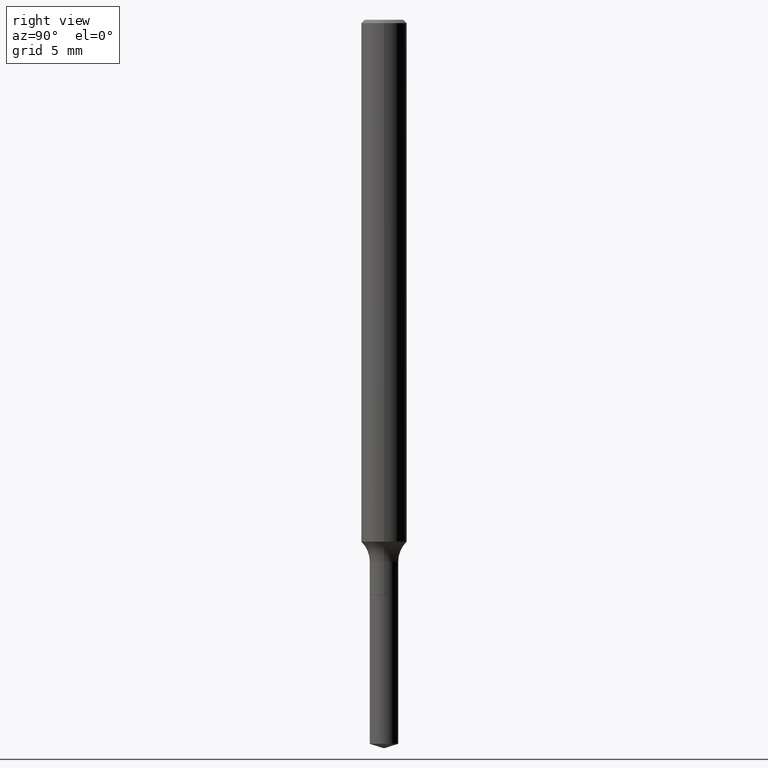
[diagram: clean part render]
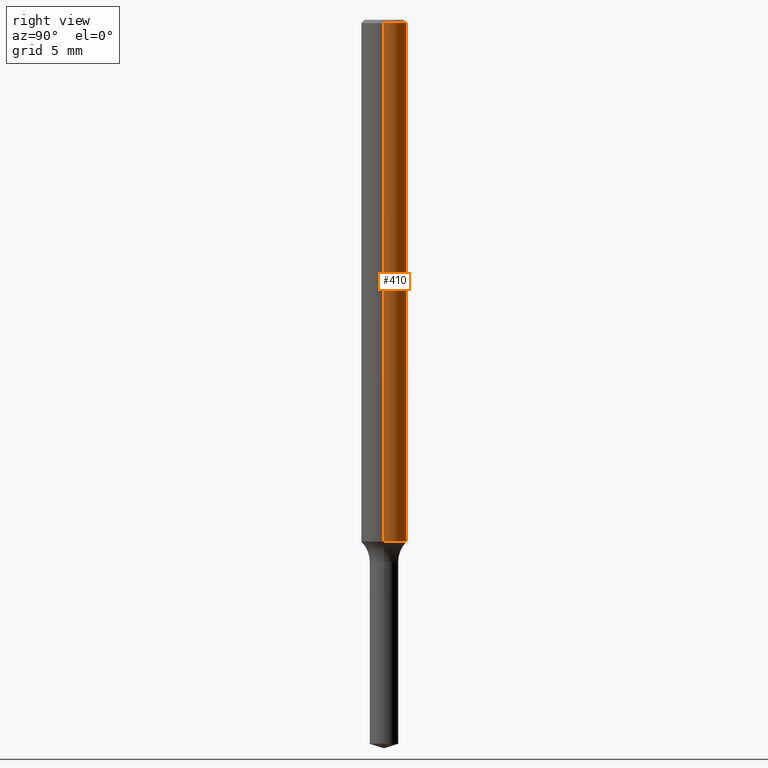
[diagram: same view with one face highlighted and labeled with its STEP entity id]
A machine part, right view. The second image highlights one B-rep face of the part: STEP entity #410.
In plain terms, the highlighted cylindrical surface (edge-blend (fillet) strip) has radius 1.5875 mm, axis along (-0, 0, 1).
Its self-contained STEP definition (entity closure, byte-faithful):
#14 = ORIENTED_EDGE ( 'NONE', *, *, #454, .F. ) ;
#19 = DIRECTION ( 'NONE',  ( -2.445468806185136597E-29, 3.491481338843145583E-15, 1.000000000000000000 ) ) ;
#40 = VERTEX_POINT ( 'NONE', #209 ) ;
#50 = DIRECTION ( 'NONE',  ( -2.445468806185136877E-29, 3.491481338843145188E-15, 1.000000000000000000 ) ) ;
#58 = CARTESIAN_POINT ( 'NONE',  ( 0.06250000000000020817, -5.438485952664117862E-15, -1.432644284722451422 ) ) ;
#68 = VECTOR ( 'NONE', #84, 39.37007874015748143 ) ;
#84 = DIRECTION ( 'NONE',  ( -2.445468806185136877E-29, 3.491481338843145188E-15, 1.000000000000000000 ) ) ;
#89 = AXIS2_PLACEMENT_3D ( 'NONE', #353, #19, #163 ) ;
#99 = CYLINDRICAL_SURFACE ( 'NONE', #89, 0.06250000000000009714 ) ;
#108 = AXIS2_PLACEMENT_3D ( 'NONE', #397, #317, #205 ) ;
#117 = CARTESIAN_POINT ( 'NONE',  ( 0.06250000000000009714, -4.364351673553923597E-16, 3.047610484872464775E-30 ) ) ;
#131 = AXIS2_PLACEMENT_3D ( 'NONE', #179, #491, #295 ) ;
#135 = CARTESIAN_POINT ( 'NONE',  ( -0.06250000000000020817, -4.557961575458662787E-15, -1.432644284722451422 ) ) ;
#158 = LINE ( 'NONE', #117, #456 ) ;
#162 = ORIENTED_EDGE ( 'NONE', *, *, #224, .F. ) ;
#163 = DIRECTION ( 'NONE',  ( 1.000000000000000000, -6.982962677686266711E-15, 4.876176775795935793E-29 ) ) ;
#179 = CARTESIAN_POINT ( 'NONE',  ( 2.292627005798583689E-31, -3.273263755165475115E-17, -0.009375000000000074246 ) ) ;
#181 = CIRCLE ( 'NONE', #131, 0.06250000000000001388 ) ;
#202 = FACE_OUTER_BOUND ( 'NONE', #310, .T. ) ;
#205 = DIRECTION ( 'NONE',  ( 1.000000000000000000, -6.982962677686258033E-15, 0.000000000000000000 ) ) ;
#209 = CARTESIAN_POINT ( 'NONE',  ( -0.06250000000000001388, -2.073302501580125400E-15, -0.009375000000000074246 ) ) ;
#224 = EDGE_CURVE ( 'NONE', #278, #431, #158, .T. ) ;
#226 = ORIENTED_EDGE ( 'NONE', *, *, #440, .T. ) ;
#262 = EDGE_CURVE ( 'NONE', #347, #40, #464, .T. ) ;
#278 = VERTEX_POINT ( 'NONE', #58 ) ;
#281 = CARTESIAN_POINT ( 'NONE',  ( 0.06250000000000001388, -4.691678049070464390E-16, -0.009375000000000074246 ) ) ;
#295 = DIRECTION ( 'NONE',  ( 1.000000000000000000, -6.982962677686265922E-15, 0.000000000000000000 ) ) ;
#310 = EDGE_LOOP ( 'NONE', ( #226, #377, #14, #162 ) ) ;
#317 = DIRECTION ( 'NONE',  ( -2.445468806185136597E-29, 3.491481338843145583E-15, 1.000000000000000000 ) ) ;
#347 = VERTEX_POINT ( 'NONE', #135 ) ;
#353 = CARTESIAN_POINT ( 'NONE',  ( 0.000000000000000000, 0.000000000000000000, 0.000000000000000000 ) ) ;
#377 = ORIENTED_EDGE ( 'NONE', *, *, #262, .T. ) ;
#397 = CARTESIAN_POINT ( 'NONE',  ( 3.503486908648172330E-29, -5.002050785308725404E-15, -1.432644284722451422 ) ) ;
#410 = ADVANCED_FACE ( 'NONE', ( #202 ), #99, .T. ) ;
#430 = CARTESIAN_POINT ( 'NONE',  ( -0.06250000000000009714, 4.440892098500633064E-16, -3.074334431409320668E-30 ) ) ;
#431 = VERTEX_POINT ( 'NONE', #281 ) ;
#440 = EDGE_CURVE ( 'NONE', #278, #347, #483, .T. ) ;
#454 = EDGE_CURVE ( 'NONE', #431, #40, #181, .T. ) ;
#456 = VECTOR ( 'NONE', #50, 39.37007874015748143 ) ;
#464 = LINE ( 'NONE', #430, #68 ) ;
#483 = CIRCLE ( 'NONE', #108, 0.06250000000000018041 ) ;
#491 = DIRECTION ( 'NONE',  ( -2.445468806185136597E-29, 3.491481338843145583E-15, 1.000000000000000000 ) ) ;